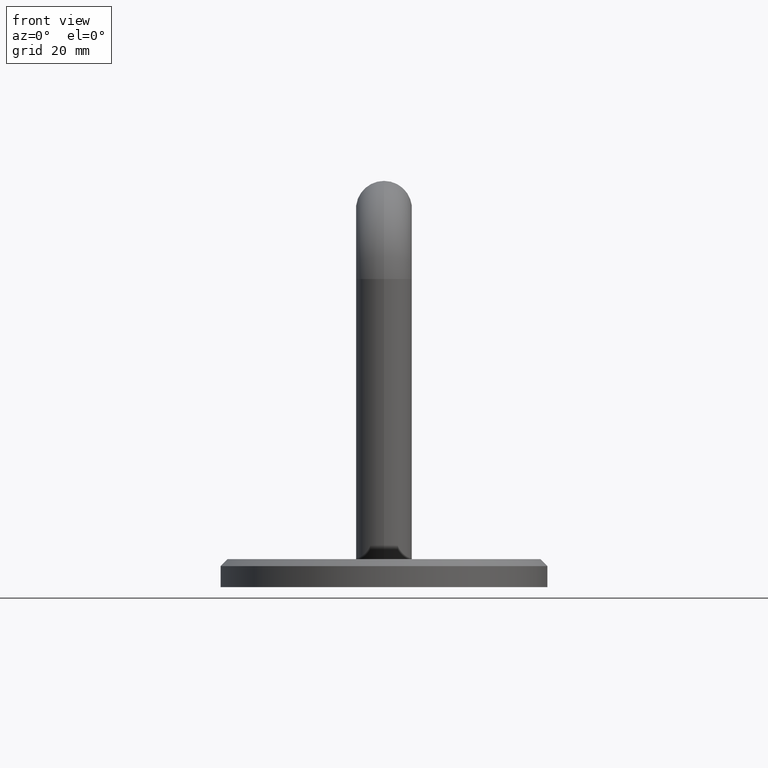
[diagram: clean part render]
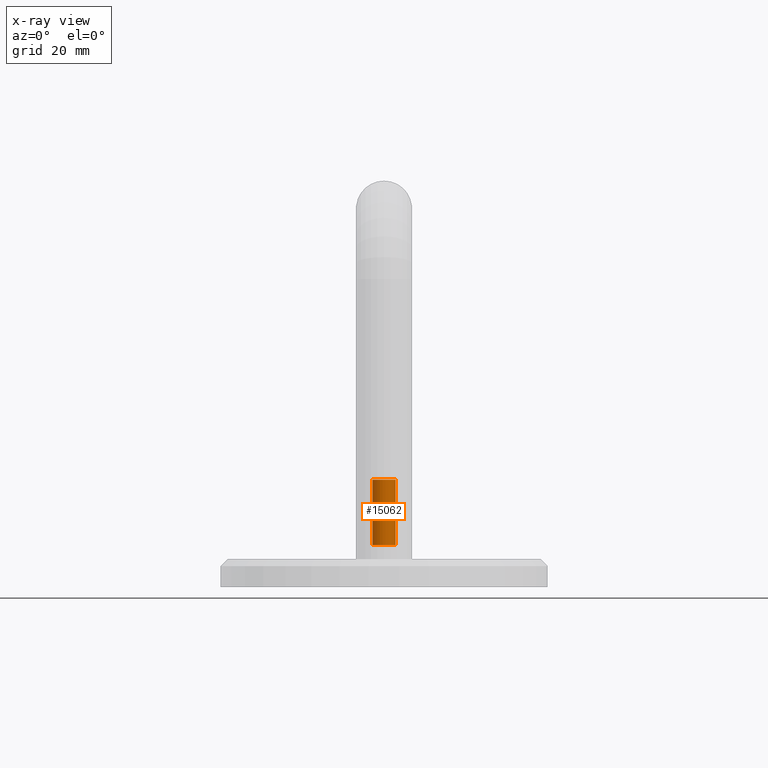
[diagram: x-ray — body ghosted, one internal face saturated and labeled with its STEP entity id]
A machine part, front view, then the same camera in x-ray: the body is ghosted and one INTERNAL B-rep face — a face not visible from any outside direction — is saturated and labeled: STEP entity #15062.
In plain terms, the highlighted cylindrical surface (edge-blend (fillet) strip) has radius 2.5 mm, axis along (0, -0, -1).
Its self-contained STEP definition (entity closure, byte-faithful):
#481 = AXIS2_PLACEMENT_3D ( 'NONE', #12078, #10848, #13246 ) ;
#628 = CARTESIAN_POINT ( 'NONE',  ( 2.499999999999996003, 0.000000000000000000, -17.00000000000000000 ) ) ;
#791 = VECTOR ( 'NONE', #13644, 1000.000000000000000 ) ;
#878 = VECTOR ( 'NONE', #2916, 1000.000000000000000 ) ;
#1696 = DIRECTION ( 'NONE',  ( 1.000000000000000000, 0.000000000000000000, 0.000000000000000000 ) ) ;
#2033 = LINE ( 'NONE', #6475, #878 ) ;
#2358 = ORIENTED_EDGE ( 'NONE', *, *, #14510, .F. ) ;
#2750 = EDGE_LOOP ( 'NONE', ( #8978, #15802, #7031, #2358 ) ) ;
#2833 = AXIS2_PLACEMENT_3D ( 'NONE', #8712, #7269, #6086 ) ;
#2916 = DIRECTION ( 'NONE',  ( -0.000000000000000000, -0.000000000000000000, 1.000000000000000000 ) ) ;
#3728 = CYLINDRICAL_SURFACE ( 'NONE', #2833, 2.499999999999996891 ) ;
#4177 = CARTESIAN_POINT ( 'NONE',  ( 0.000000000000000000, 0.000000000000000000, -3.000000000000002665 ) ) ;
#4261 = EDGE_CURVE ( 'NONE', #9928, #5146, #9678, .T. ) ;
#5106 = CARTESIAN_POINT ( 'NONE',  ( 2.499999999999996891, 0.000000000000000000, -3.000000000000002665 ) ) ;
#5146 = VERTEX_POINT ( 'NONE', #12376 ) ;
#5663 = CARTESIAN_POINT ( 'NONE',  ( -2.499999999999996003, 3.061616997868378704E-16, -17.00000000000000000 ) ) ;
#6086 = DIRECTION ( 'NONE',  ( 1.000000000000000000, 0.000000000000000000, 0.000000000000000000 ) ) ;
#6475 = CARTESIAN_POINT ( 'NONE',  ( 2.499999999999996891, 0.000000000000000000, 0.000000000000000000 ) ) ;
#6556 = LINE ( 'NONE', #12580, #791 ) ;
#7031 = ORIENTED_EDGE ( 'NONE', *, *, #4261, .F. ) ;
#7269 = DIRECTION ( 'NONE',  ( -0.000000000000000000, -0.000000000000000000, 1.000000000000000000 ) ) ;
#7411 = EDGE_CURVE ( 'NONE', #8559, #5146, #6556, .T. ) ;
#7990 = VERTEX_POINT ( 'NONE', #628 ) ;
#8185 = EDGE_CURVE ( 'NONE', #8559, #7990, #12688, .T. ) ;
#8559 = VERTEX_POINT ( 'NONE', #5663 ) ;
#8712 = CARTESIAN_POINT ( 'NONE',  ( 0.000000000000000000, 0.000000000000000000, 0.000000000000000000 ) ) ;
#8978 = ORIENTED_EDGE ( 'NONE', *, *, #8185, .F. ) ;
#9065 = DIRECTION ( 'NONE',  ( 0.000000000000000000, 0.000000000000000000, -1.000000000000000000 ) ) ;
#9678 = CIRCLE ( 'NONE', #12729, 2.499999999999996891 ) ;
#9928 = VERTEX_POINT ( 'NONE', #5106 ) ;
#10848 = DIRECTION ( 'NONE',  ( -0.000000000000000000, -0.000000000000000000, 1.000000000000000000 ) ) ;
#12078 = CARTESIAN_POINT ( 'NONE',  ( 0.000000000000000000, 0.000000000000000000, -17.00000000000000000 ) ) ;
#12376 = CARTESIAN_POINT ( 'NONE',  ( -2.499999999999996891, 4.898587196589410857E-16, -3.000000000000002665 ) ) ;
#12580 = CARTESIAN_POINT ( 'NONE',  ( -2.499999999999996891, 3.061616997868379197E-16, 0.000000000000000000 ) ) ;
#12688 = CIRCLE ( 'NONE', #481, 2.499999999999996003 ) ;
#12729 = AXIS2_PLACEMENT_3D ( 'NONE', #4177, #9065, #1696 ) ;
#13246 = DIRECTION ( 'NONE',  ( 1.000000000000000000, 0.000000000000000000, 0.000000000000000000 ) ) ;
#13644 = DIRECTION ( 'NONE',  ( -0.000000000000000000, -0.000000000000000000, 1.000000000000000000 ) ) ;
#14510 = EDGE_CURVE ( 'NONE', #7990, #9928, #2033, .T. ) ;
#15062 = ADVANCED_FACE ( 'NONE', ( #15521 ), #3728, .F. ) ;
#15521 = FACE_OUTER_BOUND ( 'NONE', #2750, .T. ) ;
#15802 = ORIENTED_EDGE ( 'NONE', *, *, #7411, .T. ) ;